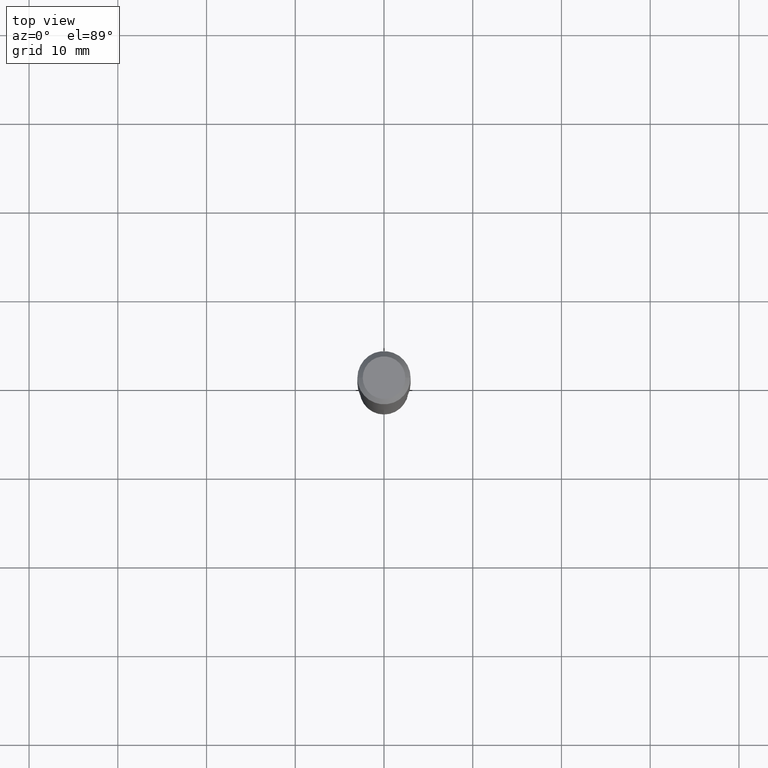
[diagram: clean part render]
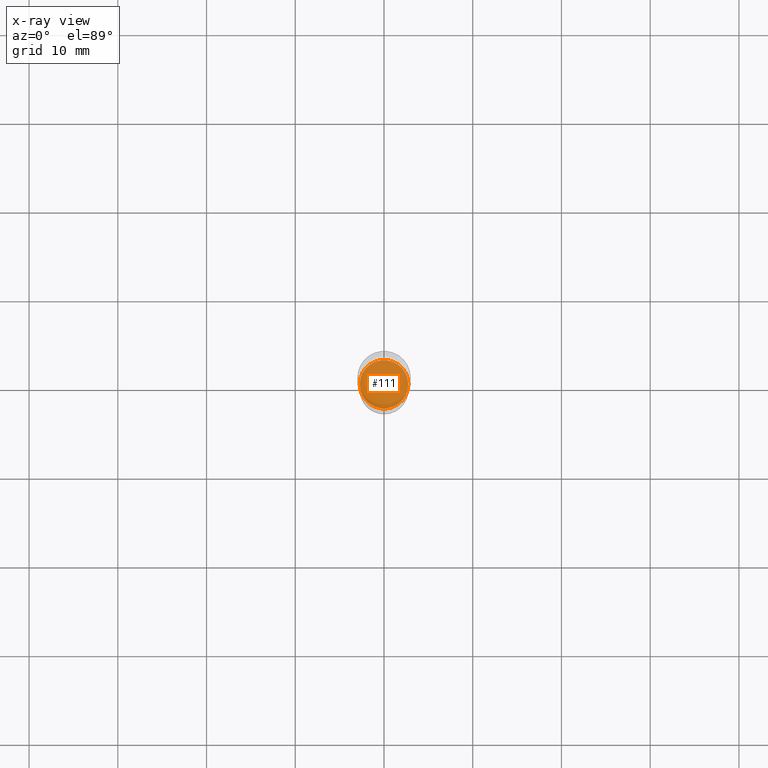
[diagram: x-ray — body ghosted, one internal face saturated and labeled with its STEP entity id]
A machine part, top view, then the same camera in x-ray: the body is ghosted and one INTERNAL B-rep face — a face not visible from any outside direction — is saturated and labeled: STEP entity #111.
In plain terms, the highlighted planar face has unit normal (-0, 0, 1).
Its self-contained STEP definition (entity closure, byte-faithful):
#17 = VERTEX_POINT ( 'NONE', #76 ) ;
#39 = ORIENTED_EDGE ( 'NONE', *, *, #239, .F. ) ;
#76 = CARTESIAN_POINT ( 'NONE',  ( 0.1077499999999999986, -6.731576021289582030E-15, -1.712500000000000133 ) ) ;
#111 = ADVANCED_FACE ( 'NONE', ( #210 ), #365, .F. ) ;
#115 = AXIS2_PLACEMENT_3D ( 'NONE', #375, #445, #334 ) ;
#159 = CARTESIAN_POINT ( 'NONE',  ( 4.187865330592046870E-29, -5.979161792768887170E-15, -1.712500000000000133 ) ) ;
#168 = DIRECTION ( 'NONE',  ( 1.000000000000000000, -6.982962677686263555E-15, 0.000000000000000000 ) ) ;
#210 = FACE_OUTER_BOUND ( 'NONE', #438, .T. ) ;
#213 = CIRCLE ( 'NONE', #277, 0.1077499999999999986 ) ;
#239 = EDGE_CURVE ( 'NONE', #17, #431, #213, .T. ) ;
#277 = AXIS2_PLACEMENT_3D ( 'NONE', #159, #309, #168 ) ;
#309 = DIRECTION ( 'NONE',  ( -2.445468806185136597E-29, 3.491481338843145583E-15, 1.000000000000000000 ) ) ;
#328 = DIRECTION ( 'NONE',  ( 1.000000000000000000, -6.982962677686263555E-15, 0.000000000000000000 ) ) ;
#334 = DIRECTION ( 'NONE',  ( 1.000000000000000000, -6.982962677686265922E-15, 4.876176775795935793E-29 ) ) ;
#345 = ORIENTED_EDGE ( 'NONE', *, *, #368, .F. ) ;
#365 = PLANE ( 'NONE',  #115 ) ;
#367 = CARTESIAN_POINT ( 'NONE',  ( 4.187865330592046870E-29, -5.979161792768887170E-15, -1.712500000000000133 ) ) ;
#368 = EDGE_CURVE ( 'NONE', #431, #17, #420, .T. ) ;
#375 = CARTESIAN_POINT ( 'NONE',  ( 4.187865330592046870E-29, -5.979161792768887170E-15, -1.712500000000000133 ) ) ;
#385 = AXIS2_PLACEMENT_3D ( 'NONE', #367, #478, #328 ) ;
#420 = CIRCLE ( 'NONE', #385, 0.1077499999999999986 ) ;
#431 = VERTEX_POINT ( 'NONE', #439 ) ;
#438 = EDGE_LOOP ( 'NONE', ( #39, #345 ) ) ;
#439 = CARTESIAN_POINT ( 'NONE',  ( -0.1077499999999999986, -5.210902767813268719E-15, -1.712500000000000133 ) ) ;
#445 = DIRECTION ( 'NONE',  ( -2.438088387897960049E-29, 3.491481338843145188E-15, 1.000000000000000000 ) ) ;
#478 = DIRECTION ( 'NONE',  ( -2.445468806185136597E-29, 3.491481338843145583E-15, 1.000000000000000000 ) ) ;